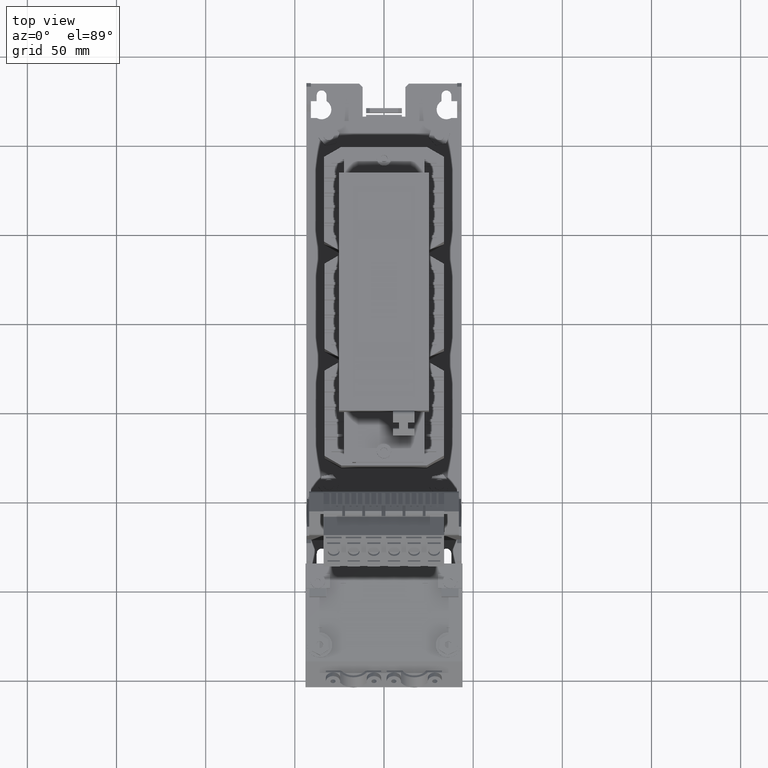
[diagram: clean part render]
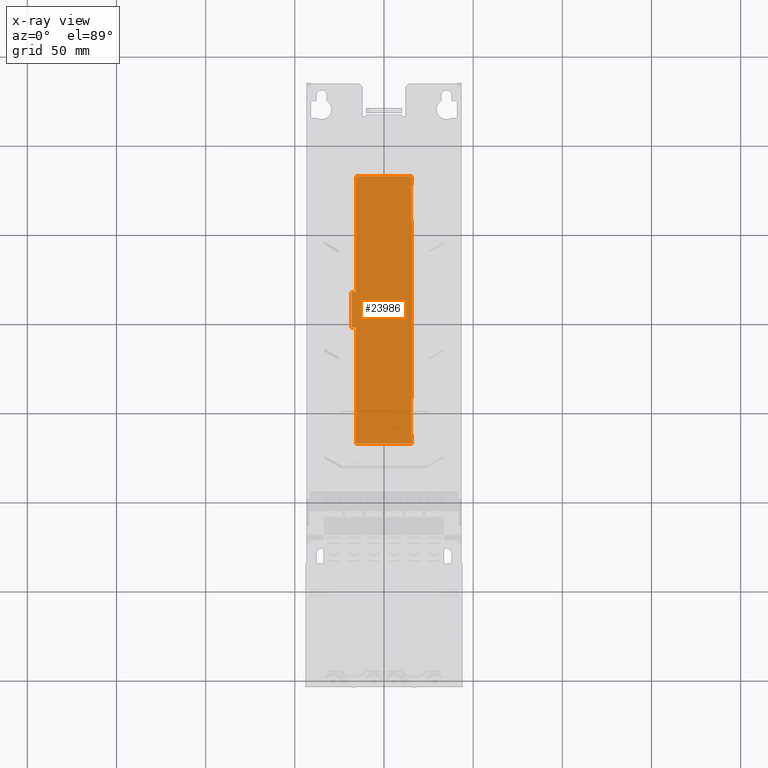
[diagram: x-ray — body ghosted, one internal face saturated and labeled with its STEP entity id]
A machine part, top view, then the same camera in x-ray: the body is ghosted and one INTERNAL B-rep face — a face not visible from any outside direction — is saturated and labeled: STEP entity #23986.
In plain terms, the highlighted planar face has unit normal (0, 0, -1).
Its self-contained STEP definition (entity closure, byte-faithful):
#7523=DIRECTION('',(0.E0,1.E0,0.E0));
#7524=VECTOR('',#7523,5.E0);
#7525=CARTESIAN_POINT('',(1.575E1,-6.7E1,2.85E0));
#7526=LINE('',#7525,#7524);
#7539=DIRECTION('',(0.E0,1.E0,0.E0));
#7540=VECTOR('',#7539,5.E0);
#7541=CARTESIAN_POINT('',(1.575E1,7.8E1,2.85E0));
#7542=LINE('',#7541,#7540);
#7563=DIRECTION('',(0.E0,1.E0,0.E0));
#7564=VECTOR('',#7563,1.E2);
#7565=CARTESIAN_POINT('',(1.575E1,-4.2E1,2.85E0));
#7566=LINE('',#7565,#7564);
#7593=DIRECTION('',(1.E0,0.E0,0.E0));
#7594=VECTOR('',#7593,2.399999999999E0);
#7595=CARTESIAN_POINT('',(-1.815E1,1.8E1,2.849999999999E0));
#7596=LINE('',#7595,#7594);
#7597=DIRECTION('',(-1.E0,0.E0,0.E0));
#7598=VECTOR('',#7597,3.15E1);
#7599=CARTESIAN_POINT('',(1.575E1,-6.7E1,2.85E0));
#7600=LINE('',#7599,#7598);
#7601=DIRECTION('',(-1.E0,0.E0,0.E0));
#7602=VECTOR('',#7601,5.999999999993E-1);
#7603=CARTESIAN_POINT('',(1.575E1,-6.2E1,2.85E0));
#7604=LINE('',#7603,#7602);
#7605=DIRECTION('',(0.E0,1.E0,0.E0));
#7606=VECTOR('',#7605,2.E1);
#7607=CARTESIAN_POINT('',(1.515E1,-6.2E1,2.85E0));
#7608=LINE('',#7607,#7606);
#7609=DIRECTION('',(-1.E0,0.E0,0.E0));
#7610=VECTOR('',#7609,5.999999999993E-1);
#7611=CARTESIAN_POINT('',(1.575E1,-4.2E1,2.85E0));
#7612=LINE('',#7611,#7610);
#7613=DIRECTION('',(-1.E0,-1.184237892935E-14,0.E0));
#7614=VECTOR('',#7613,5.999999999993E-1);
#7615=CARTESIAN_POINT('',(1.575E1,5.8E1,2.85E0));
#7616=LINE('',#7615,#7614);
#7617=DIRECTION('',(0.E0,1.E0,0.E0));
#7618=VECTOR('',#7617,2.E1);
#7619=CARTESIAN_POINT('',(1.515E1,5.8E1,2.85E0));
#7620=LINE('',#7619,#7618);
#7621=DIRECTION('',(-1.E0,0.E0,0.E0));
#7622=VECTOR('',#7621,5.999999999993E-1);
#7623=CARTESIAN_POINT('',(1.575E1,7.8E1,2.85E0));
#7624=LINE('',#7623,#7622);
#7629=DIRECTION('',(0.E0,1.E0,0.E0));
#7630=VECTOR('',#7629,6.5E1);
#7631=CARTESIAN_POINT('',(-1.575E1,1.8E1,2.849999999999E0));
#7632=LINE('',#7631,#7630);
#7645=DIRECTION('',(0.E0,1.E0,0.E0));
#7646=VECTOR('',#7645,6.5E1);
#7647=CARTESIAN_POINT('',(-1.575E1,-6.7E1,2.849999999999E0));
#7648=LINE('',#7647,#7646);
#7701=DIRECTION('',(1.E0,0.E0,0.E0));
#7702=VECTOR('',#7701,2.399999999999E0);
#7703=CARTESIAN_POINT('',(-1.815E1,-2.E0,2.849999999999E0));
#7704=LINE('',#7703,#7702);
#7725=DIRECTION('',(0.E0,-1.E0,0.E0));
#7726=VECTOR('',#7725,2.E1);
#7727=CARTESIAN_POINT('',(-1.815E1,1.8E1,2.849999999999E0));
#7728=LINE('',#7727,#7726);
#7785=DIRECTION('',(-1.E0,0.E0,0.E0));
#7786=VECTOR('',#7785,3.15E1);
#7787=CARTESIAN_POINT('',(1.575E1,8.3E1,2.85E0));
#7788=LINE('',#7787,#7786);
#14965=CARTESIAN_POINT('',(1.575E1,-6.7E1,2.85E0));
#14967=VERTEX_POINT('',#14965);
#14968=CARTESIAN_POINT('',(1.575E1,8.3E1,2.85E0));
#14970=VERTEX_POINT('',#14968);
#14973=CARTESIAN_POINT('',(-1.575E1,-6.7E1,2.849999999999E0));
#14975=VERTEX_POINT('',#14973);
#14976=CARTESIAN_POINT('',(-1.575E1,8.3E1,2.849999999999E0));
#14978=VERTEX_POINT('',#14976);
#15012=CARTESIAN_POINT('',(1.575E1,-6.2E1,2.85E0));
#15014=VERTEX_POINT('',#15012);
#15016=CARTESIAN_POINT('',(1.575E1,-4.2E1,2.85E0));
#15018=VERTEX_POINT('',#15016);
#15024=CARTESIAN_POINT('',(1.575E1,5.8E1,2.85E0));
#15026=VERTEX_POINT('',#15024);
#15028=CARTESIAN_POINT('',(1.575E1,7.8E1,2.85E0));
#15030=VERTEX_POINT('',#15028);
#15036=CARTESIAN_POINT('',(1.515E1,-6.2E1,2.85E0));
#15037=CARTESIAN_POINT('',(1.515E1,-4.2E1,2.85E0));
#15038=VERTEX_POINT('',#15036);
#15039=VERTEX_POINT('',#15037);
#15040=CARTESIAN_POINT('',(1.515E1,5.8E1,2.85E0));
#15041=CARTESIAN_POINT('',(1.515E1,7.8E1,2.85E0));
#15042=VERTEX_POINT('',#15040);
#15043=VERTEX_POINT('',#15041);
#15101=CARTESIAN_POINT('',(-1.815E1,1.8E1,2.849999999999E0));
#15103=VERTEX_POINT('',#15101);
#15104=CARTESIAN_POINT('',(-1.815E1,-2.E0,2.849999999999E0));
#15105=VERTEX_POINT('',#15104);
#15112=CARTESIAN_POINT('',(-1.575E1,1.8E1,2.849999999999E0));
#15114=VERTEX_POINT('',#15112);
#15116=CARTESIAN_POINT('',(-1.575E1,-2.E0,2.849999999999E0));
#15118=VERTEX_POINT('',#15116);
#23954=CARTESIAN_POINT('',(1.575E1,-6.7E1,2.85E0));
#23955=DIRECTION('',(0.E0,0.E0,-1.E0));
#23956=DIRECTION('',(0.E0,1.E0,0.E0));
#23957=AXIS2_PLACEMENT_3D('',#23954,#23955,#23956);
#23958=PLANE('',#23957);
#23960=ORIENTED_EDGE('',*,*,#23959,.F.);
#23962=ORIENTED_EDGE('',*,*,#23961,.F.);
#23964=ORIENTED_EDGE('',*,*,#23963,.T.);
#23966=ORIENTED_EDGE('',*,*,#23965,.T.);
#23968=ORIENTED_EDGE('',*,*,#23967,.F.);
#23970=ORIENTED_EDGE('',*,*,#23969,.F.);
#23971=ORIENTED_EDGE('',*,*,#23917,.T.);
#23972=ORIENTED_EDGE('',*,*,#23841,.T.);
#23973=ORIENTED_EDGE('',*,*,#23859,.T.);
#23974=ORIENTED_EDGE('',*,*,#23891,.F.);
#23975=ORIENTED_EDGE('',*,*,#23937,.T.);
#23977=ORIENTED_EDGE('',*,*,#23976,.T.);
#23978=ORIENTED_EDGE('',*,*,#23873,.T.);
#23980=ORIENTED_EDGE('',*,*,#23979,.F.);
#23981=ORIENTED_EDGE('',*,*,#23925,.T.);
#23983=ORIENTED_EDGE('',*,*,#23982,.T.);
#23984=EDGE_LOOP('',(#23960,#23962,#23964,#23966,#23968,#23970,#23971,#23972,
#23973,#23974,#23975,#23977,#23978,#23980,#23981,#23983));
#23985=FACE_OUTER_BOUND('',#23984,.F.);
#23986=ADVANCED_FACE('',(#23985),#23958,.T.);
#23841=EDGE_CURVE('',#15014,#15038,#7604,.T.);
#23859=EDGE_CURVE('',#15038,#15039,#7608,.T.);
#23873=EDGE_CURVE('',#15042,#15043,#7620,.T.);
#23891=EDGE_CURVE('',#15018,#15039,#7612,.T.);
#23917=EDGE_CURVE('',#14967,#15014,#7526,.T.);
#23925=EDGE_CURVE('',#15030,#14970,#7542,.T.);
#23937=EDGE_CURVE('',#15018,#15026,#7566,.T.);
#23959=EDGE_CURVE('',#15114,#14978,#7632,.T.);
#23961=EDGE_CURVE('',#15103,#15114,#7596,.T.);
#23963=EDGE_CURVE('',#15103,#15105,#7728,.T.);
#23965=EDGE_CURVE('',#15105,#15118,#7704,.T.);
#23967=EDGE_CURVE('',#14975,#15118,#7648,.T.);
#23969=EDGE_CURVE('',#14967,#14975,#7600,.T.);
#23976=EDGE_CURVE('',#15026,#15042,#7616,.T.);
#23979=EDGE_CURVE('',#15030,#15043,#7624,.T.);
#23982=EDGE_CURVE('',#14970,#14978,#7788,.T.);